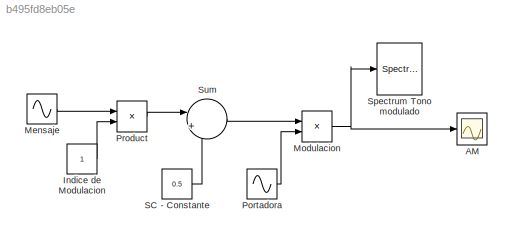
MODEL slx_b495fd8eb05e
KIND model
CONFIG AbsTol = auto
CONFIG EnableMultiTasking = on
CONFIG FixedStep = auto
CONFIG MaxStep = auto
CONFIG MinStep = auto
CONFIG RelTol = 1e-3
CONFIG SampleTimeConstraint = Unconstrained
CONFIG SolverName = VariableStepAuto
CONFIG StartTime = 0.0
CONFIG StopTime = 0.001
BLOCK [Scope] AM
  Floating = off
  NumInputPorts = 1
  ScopeSpecificationString = Simulink.scopes.TimeScopeBlockCfg('CurrentConfiguration', extmgr.ConfigurationSet(extmgr.Configuration('Core','General UI',true,'DisplayFullSourceName',true),extmgr.Configuration('Core','Source UI',true),extmgr.Configuration('Sources','WiredSimulink',true),extmgr.Configuration('Visuals','Time Domain',true,'SerializedDisplays',{struct('MinYLimReal','-1.85961','MaxYLimReal','1.85961','YLabelReal',''...<+1559ch>
BLOCK [Constant] Indice de Modulacion
BLOCK [Sin] Mensaje
  Frequency = 2*pi*1e6
  SampleTime = 1/(1e9)
BLOCK [Product] Modulacion 
BLOCK [Sin] Portadora 
  Frequency = 2*pi*(10e6)
  SampleTime = 1/(1e9)
BLOCK [Product] Product
BLOCK [Constant] SC - Constante
  Value = 0.5
BLOCK [SpectrumAnalyzer] Spectrum Tono modulado
  AllowFFTLengthLessThanSamplesPerUpdate = on
  AveragingMethod = Running
  AxesScaling = Manual
  CenterFrequency = 10e6
  DefaultConfigurationName = spbscopes.SpectrumAnalyzerBlockCfg
  FrequencySpan = Span and center frequency
  GraphicalSettings = {"GraphicalSettings":{"Style":{"BackgroundColor":[0.12941176470588237,0.12941176470588237,0.12941176470588237],"AxesColor":[0,0,0],"LabelsColor":[0.6862745098039216,0.6862745098039216,0.6862745098039216],"PreserveColors":false,"Visible":[true],"LineStyle":["-"],"LineWidth":[2],"BarWidth":[0.9],"LineColor":[[1,0.9098039215686274,0.39215686274509803]],"LineFaceAlpha":[1],"LineEdgeAlpha":[1],"Marker"...<+943ch>
  Method = Welch
  SampleRate = 1000000000
  ScopeFrameLocation = window
  ScopeSpecificationString = spbscopes.SpectrumAnalyzerBlockCfg('CurrentConfiguration', extmgr.ConfigurationSet(extmgr.Configuration('Core','General UI',true),extmgr.Configuration('Core','Source UI',true),extmgr.Configuration('Sources','WiredSimulink',true),extmgr.Configuration('Sources','Simulink',false),extmgr.Configuration('Sources','SimulinkEvent',false),extmgr.Configuration('Sources','File',false),extmgr.Configuration('S...<+3472ch>
  SelectedToolstripTab = spectrumAnalyzerToolstrip.measurementsTab
  ShowGrid = off
  Span = 5e6
  StartFrequency = -500000000
  StopFrequency = 500000000
  WasSavedAsWebScope = on
  WindowPosition = [-958.000000,-5.000000,958.000000,1048.000000,]
  YLabel = dBm
  YLimits = [-137.9101002091548,88.02942452262732]
BLOCK [Sum] Sum
  Inputs = |++
LINE Indice de Modulacion:1 -> Product:2
LINE Mensaje:1 -> Product:1
NET Modulacion :1 -> AM:1, Spectrum Tono modulado:1
LINE Portadora :1 -> Modulacion :2
LINE Product:1 -> Sum:1
LINE SC - Constante:1 -> Sum:2
LINE Sum:1 -> Modulacion :1
note: NET lines group one-source signal fan-out (src -> all destinations, sorted); 1:1 wires keep LINE
